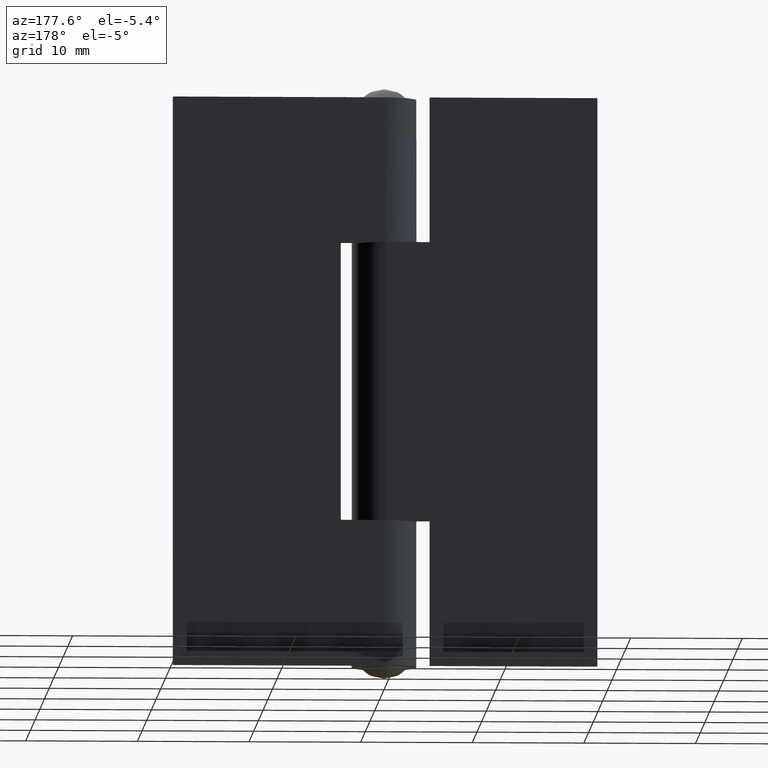
[diagram: clean part render]
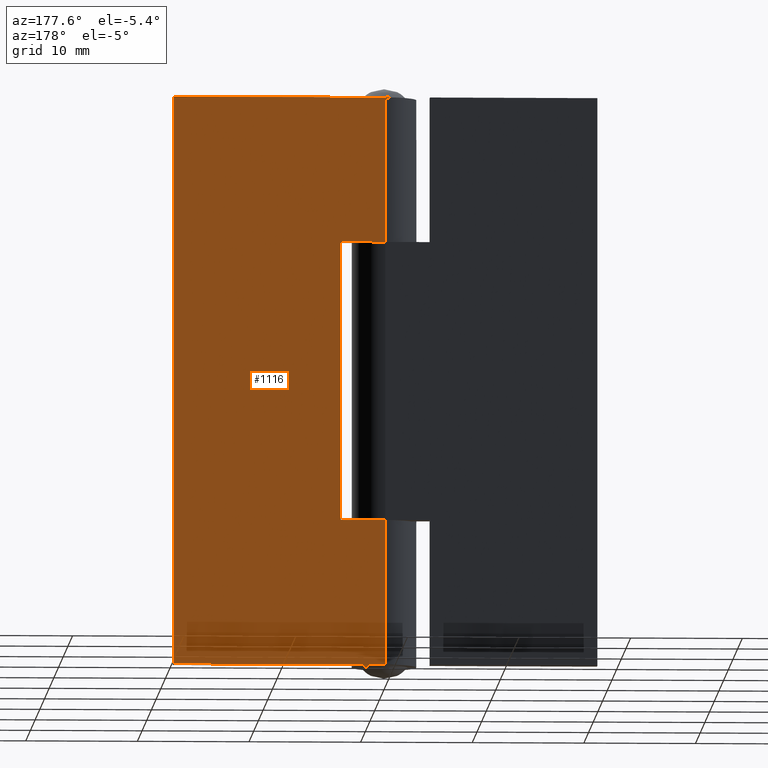
[diagram: same view with one face highlighted and labeled with its STEP entity id]
A machine part, auxiliary view. The second image highlights one B-rep face of the part: STEP entity #1116.
In plain terms, the highlighted face is a freeform B-spline surface patch.
Its self-contained STEP definition (entity closure, byte-faithful):
#466=CARTESIAN_POINT('',(4.0,2.900002000000070,38.0));
#467=VERTEX_POINT('',#466);
#468=CARTESIAN_POINT('',(0.0,2.900002000000070,38.0));
#469=VERTEX_POINT('',#468);
#470=CARTESIAN_POINT('',(4.0,2.900002000000070,38.0));
#471=CARTESIAN_POINT('',(0.0,2.900002000000070,38.0));
#472=QUASI_UNIFORM_CURVE('',1,(#470,#471),.UNSPECIFIED.,.F.,.U.);
#473=EDGE_CURVE('',#467,#469,#472,.T.);
#617=CARTESIAN_POINT('',(4.0,2.900002000000070,13.0));
#618=VERTEX_POINT('',#617);
#624=CARTESIAN_POINT('',(0.0,2.900002000000070,13.0));
#625=VERTEX_POINT('',#624);
#626=CARTESIAN_POINT('',(0.0,2.900002000000070,13.0));
#627=CARTESIAN_POINT('',(4.0,2.900002000000070,13.0));
#628=QUASI_UNIFORM_CURVE('',1,(#626,#627),.UNSPECIFIED.,.F.,.U.);
#629=EDGE_CURVE('',#625,#618,#628,.T.);
#678=CARTESIAN_POINT('',(4.0,2.900002000000070,13.0));
#679=CARTESIAN_POINT('',(4.0,2.900002000000070,38.0));
#680=QUASI_UNIFORM_CURVE('',1,(#678,#679),.UNSPECIFIED.,.F.,.U.);
#681=EDGE_CURVE('',#618,#467,#680,.T.);
#694=CARTESIAN_POINT('',(19.0,2.900002000000000,0.0));
#695=VERTEX_POINT('',#694);
#749=CARTESIAN_POINT('',(0.0,2.900002000000000,0.0));
#750=VERTEX_POINT('',#749);
#785=CARTESIAN_POINT('',(19.0,2.900002000000000,0.0));
#786=CARTESIAN_POINT('',(0.0,2.900002000000000,0.0));
#787=QUASI_UNIFORM_CURVE('',1,(#785,#786),.UNSPECIFIED.,.F.,.U.);
#788=EDGE_CURVE('',#695,#750,#787,.T.);
#800=CARTESIAN_POINT('',(19.0,2.900002000000000,51.0));
#801=VERTEX_POINT('',#800);
#807=CARTESIAN_POINT('',(0.0,2.900002000000000,51.0));
#808=VERTEX_POINT('',#807);
#809=CARTESIAN_POINT('',(19.0,2.900002000000000,51.0));
#810=CARTESIAN_POINT('',(0.0,2.900002000000000,51.0));
#811=QUASI_UNIFORM_CURVE('',1,(#809,#810),.UNSPECIFIED.,.F.,.U.);
#812=EDGE_CURVE('',#801,#808,#811,.T.);
#899=CARTESIAN_POINT('',(19.0,2.900002000000000,51.0));
#900=CARTESIAN_POINT('',(19.0,2.900002000000000,0.0));
#901=QUASI_UNIFORM_CURVE('',1,(#899,#900),.UNSPECIFIED.,.F.,.U.);
#902=EDGE_CURVE('',#801,#695,#901,.T.);
#1057=CARTESIAN_POINT('',(0.0,2.900002000000000,51.0));
#1058=CARTESIAN_POINT('',(0.0,2.900002000000070,38.0));
#1059=QUASI_UNIFORM_CURVE('',1,(#1057,#1058),.UNSPECIFIED.,.F.,.U.);
#1060=EDGE_CURVE('',#808,#469,#1059,.T.);
#1092=CARTESIAN_POINT('',(0.0,2.900002000000070,13.0));
#1093=CARTESIAN_POINT('',(0.0,2.900002000000000,0.0));
#1094=QUASI_UNIFORM_CURVE('',1,(#1092,#1093),.UNSPECIFIED.,.F.,.U.);
#1095=EDGE_CURVE('',#625,#750,#1094,.T.);
#1101=CARTESIAN_POINT('',(-0.949049963174314,2.900002000000000,53.547449901152113));
#1102=CARTESIAN_POINT('',(-0.949049963174314,2.900002000000000,-2.547451269078709));
#1103=CARTESIAN_POINT('',(19.949050472794021,2.900002000000000,53.547449901152113));
#1104=CARTESIAN_POINT('',(19.949050472794021,2.900002000000000,-2.547451269078709));
#1105=B_SPLINE_SURFACE_WITH_KNOTS('',1,1,((#1101,#1103),(#1102,#1104)),.UNSPECIFIED.,.F.,.F.,.U.,(2,2),(2,2),(0.0,56.094901170230820),(0.0,20.898100435968342),.UNSPECIFIED.);
#1106=ORIENTED_EDGE('',*,*,#629,.T.);
#1107=ORIENTED_EDGE('',*,*,#681,.T.);
#1108=ORIENTED_EDGE('',*,*,#473,.T.);
#1109=ORIENTED_EDGE('',*,*,#1060,.F.);
#1110=ORIENTED_EDGE('',*,*,#812,.F.);
#1111=ORIENTED_EDGE('',*,*,#902,.T.);
#1112=ORIENTED_EDGE('',*,*,#788,.T.);
#1113=ORIENTED_EDGE('',*,*,#1095,.F.);
#1114=EDGE_LOOP('',(#1106,#1107,#1108,#1109,#1110,#1111,#1112,#1113));
#1115=FACE_OUTER_BOUND('',#1114,.T.);
#1116=ADVANCED_FACE('',(#1115),#1105,.F.);